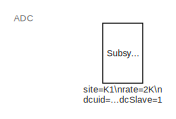
[diagram: root canvas - part 1/3, top left region]
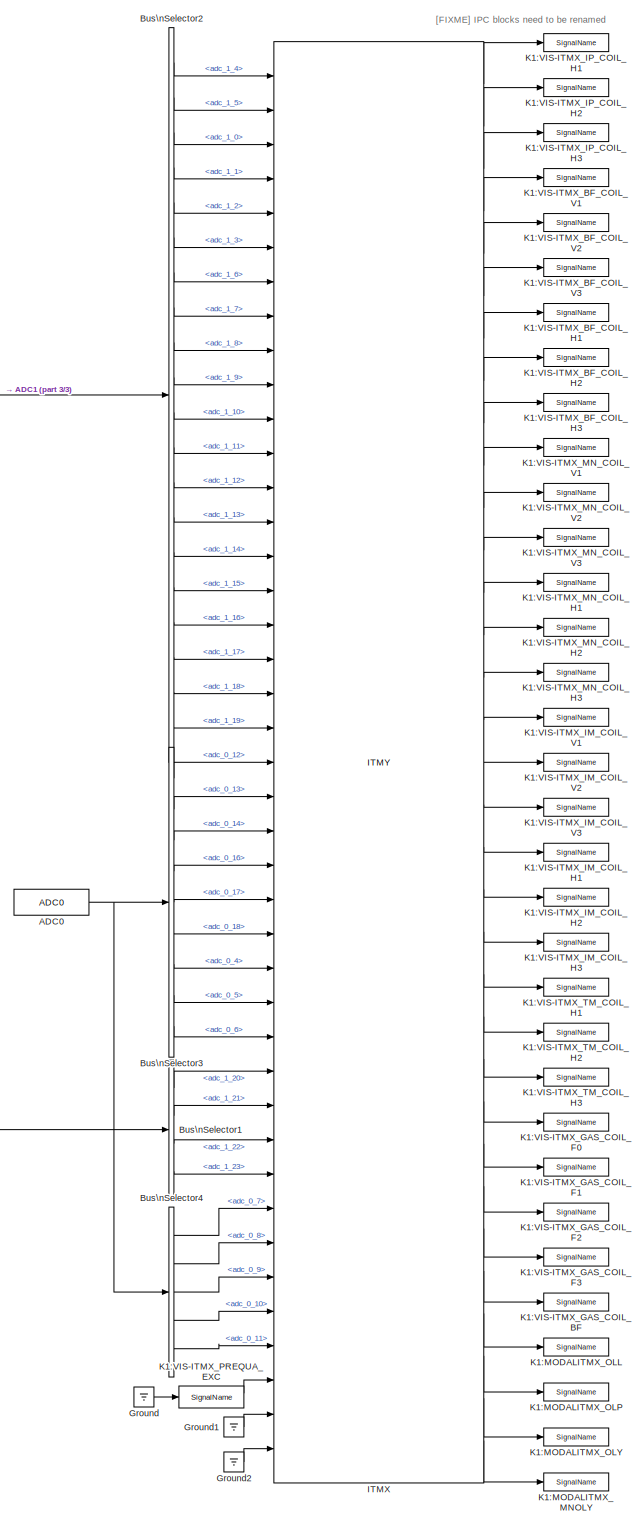
[diagram: root canvas - part 2/3, right side, full height]
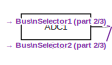
[diagram: root canvas - part 3/3, middle left region]
MODEL k1modalitmx
KIND model
BLOCK [Reference] ADC0  REF=cdsAdcx0/ADC0
  AttributesFormatString = %<Description>\\n%<Tag>
  Description = type-GSC_16AI64SSA\ncard_num=0
  Ports = [0, 1]
  SID = 4476
  SourceBlock = cdsAdcx0/ADC0
  SourceType = SubSystem
  Tag = cdsAdc
BLOCK [Reference] ADC1  REF=cdsAdcx1/ADC1
  AttributesFormatString = %<Description>\\n%<Tag>
  Description = type-GSC_16AI64SSA\ncard_num=1
  Ports = [0, 1]
  SID = 4477
  SourceBlock = cdsAdcx1/ADC1
  SourceType = SubSystem
  Tag = cdsAdc
BLOCK [BusSelector] Bus\nSelector1
  OutputSignals = adc_1_20,adc_1_21,adc_1_22,adc_1_23
  Ports = [1, 4]
  SID = 4478
BLOCK [BusSelector] Bus\nSelector2
  OutputSignals = adc_1_4,adc_1_5,adc_1_0,adc_1_1,adc_1_2,adc_1_3,adc_1_6,adc_1_7,adc_1_8,adc_1_9,adc_1_10,adc_1_11,adc_1_12,adc_1_13,adc_1_14,adc_1_15,adc_1_16,adc_1_17,adc_1_18,adc_1_19
  Ports = [1, 20]
  SID = 4479
BLOCK [BusSelector] Bus\nSelector3
  OutputSignals = adc_0_12,adc_0_13,adc_0_14,adc_0_16,adc_0_17,adc_0_18,adc_0_4,adc_0_5,adc_0_6
  Ports = [1, 9]
  SID = 4480
BLOCK [BusSelector] Bus\nSelector4
  OutputSignals = adc_0_7,adc_0_8,adc_0_9,adc_0_10,adc_0_11
  Ports = [1, 5]
  SID = 4481
BLOCK [Ground] Ground
  SID = 4482
BLOCK [Ground] Ground1
  SID = 6028
BLOCK [Ground] Ground2
  SID = 6029
BLOCK [Reference] ITMX  REF=VISMODAL_MASTER/ITMY
  Ports = [41, 33]
  SID = 6027
  SourceBlock = VISMODAL_MASTER/ITMY
  SourceType = SubSystem
BLOCK [Reference] K1:MODALITMX_MNOLY  REF=cdsIPCx/SignalName
  AttributesFormatString = %<Tag>
  Description = Inter-Process Communication via Shared memory.
  Ports = [1, 2]
  SID = 6033
  SourceBlock = cdsIPCx/SignalName
  SourceType = SubSystem
  Tag = cdsIPCx_SHMEM
BLOCK [Reference] K1:MODALITMX_OLL  REF=cdsIPCx/SignalName
  AttributesFormatString = %<Tag>
  Description = Inter-Process Communication via Shared memory.
  Ports = [1, 2]
  SID = 6030
  SourceBlock = cdsIPCx/SignalName
  SourceType = SubSystem
  Tag = cdsIPCx_SHMEM
BLOCK [Reference] K1:MODALITMX_OLP  REF=cdsIPCx/SignalName
  AttributesFormatString = %<Tag>
  Description = Inter-Process Communication via Shared memory.
  Ports = [1, 2]
  SID = 6031
  SourceBlock = cdsIPCx/SignalName
  SourceType = SubSystem
  Tag = cdsIPCx_SHMEM
BLOCK [Reference] K1:MODALITMX_OLY  REF=cdsIPCx/SignalName
  AttributesFormatString = %<Tag>
  Description = Inter-Process Communication via Shared memory.
  Ports = [1, 2]
  SID = 6032
  SourceBlock = cdsIPCx/SignalName
  SourceType = SubSystem
  Tag = cdsIPCx_SHMEM
BLOCK [Reference] K1:VIS-ITMX_BF_COIL_H1  REF=cdsIPCx/SignalName
  AttributesFormatString = %<Tag>
  Description = Inter-Process Communication via Shared memory.
  Ports = [1, 2]
  SID = 5995
  SourceBlock = cdsIPCx/SignalName
  SourceType = SubSystem
  Tag = cdsIPCx_SHMEM
BLOCK [Reference] K1:VIS-ITMX_BF_COIL_H2  REF=cdsIPCx/SignalName
  AttributesFormatString = %<Tag>
  Description = Inter-Process Communication via Shared memory.
  Ports = [1, 2]
  SID = 5996
  SourceBlock = cdsIPCx/SignalName
  SourceType = SubSystem
  Tag = cdsIPCx_SHMEM
BLOCK [Reference] K1:VIS-ITMX_BF_COIL_H3  REF=cdsIPCx/SignalName
  AttributesFormatString = %<Tag>
  Description = Inter-Process Communication via Shared memory.
  Ports = [1, 2]
  SID = 5997
  SourceBlock = cdsIPCx/SignalName
  SourceType = SubSystem
  Tag = cdsIPCx_SHMEM
BLOCK [Reference] K1:VIS-ITMX_BF_COIL_V1  REF=cdsIPCx/SignalName
  AttributesFormatString = %<Tag>
  Description = Inter-Process Communication via Shared memory.
  Ports = [1, 2]
  SID = 5998
  SourceBlock = cdsIPCx/SignalName
  SourceType = SubSystem
  Tag = cdsIPCx_SHMEM
BLOCK [Reference] K1:VIS-ITMX_BF_COIL_V2  REF=cdsIPCx/SignalName
  AttributesFormatString = %<Tag>
  Description = Inter-Process Communication via Shared memory.
  Ports = [1, 2]
  SID = 5999
  SourceBlock = cdsIPCx/SignalName
  SourceType = SubSystem
  Tag = cdsIPCx_SHMEM
BLOCK [Reference] K1:VIS-ITMX_BF_COIL_V3  REF=cdsIPCx/SignalName
  AttributesFormatString = %<Tag>
  Description = Inter-Process Communication via Shared memory.
  Ports = [1, 2]
  SID = 6000
  SourceBlock = cdsIPCx/SignalName
  SourceType = SubSystem
  Tag = cdsIPCx_SHMEM
BLOCK [Reference] K1:VIS-ITMX_GAS_COIL_BF  REF=cdsIPCx/SignalName
  AttributesFormatString = %<Tag>
  Description = Inter-Process Communication via Shared memory.
  Ports = [1, 2]
  SID = 6001
  SourceBlock = cdsIPCx/SignalName
  SourceType = SubSystem
  Tag = cdsIPCx_SHMEM
BLOCK [Reference] K1:VIS-ITMX_GAS_COIL_F0  REF=cdsIPCx/SignalName
  AttributesFormatString = %<Tag>
  Description = Inter-Process Communication via Shared memory.
  Ports = [1, 2]
  SID = 6002
  SourceBlock = cdsIPCx/SignalName
  SourceType = SubSystem
  Tag = cdsIPCx_SHMEM
BLOCK [Reference] K1:VIS-ITMX_GAS_COIL_F1  REF=cdsIPCx/SignalName
  AttributesFormatString = %<Tag>
  Description = Inter-Process Communication via Shared memory.
  Ports = [1, 2]
  SID = 6003
  SourceBlock = cdsIPCx/SignalName
  SourceType = SubSystem
  Tag = cdsIPCx_SHMEM
BLOCK [Reference] K1:VIS-ITMX_GAS_COIL_F2  REF=cdsIPCx/SignalName
  AttributesFormatString = %<Tag>
  Description = Inter-Process Communication via Shared memory.
  Ports = [1, 2]
  SID = 6004
  SourceBlock = cdsIPCx/SignalName
  SourceType = SubSystem
  Tag = cdsIPCx_SHMEM
BLOCK [Reference] K1:VIS-ITMX_GAS_COIL_F3  REF=cdsIPCx/SignalName
  AttributesFormatString = %<Tag>
  Description = Inter-Process Communication via Shared memory.
  Ports = [1, 2]
  SID = 6005
  SourceBlock = cdsIPCx/SignalName
  SourceType = SubSystem
  Tag = cdsIPCx_SHMEM
BLOCK [Reference] K1:VIS-ITMX_IM_COIL_H1  REF=cdsIPCx/SignalName
  AttributesFormatString = %<Tag>
  Description = Inter-Process Communication via Shared memory.
  Ports = [1, 2]
  SID = 6006
  SourceBlock = cdsIPCx/SignalName
  SourceType = SubSystem
  Tag = cdsIPCx_SHMEM
BLOCK [Reference] K1:VIS-ITMX_IM_COIL_H2  REF=cdsIPCx/SignalName
  AttributesFormatString = %<Tag>
  Description = Inter-Process Communication via Shared memory.
  Ports = [1, 2]
  SID = 6007
  SourceBlock = cdsIPCx/SignalName
  SourceType = SubSystem
  Tag = cdsIPCx_SHMEM
BLOCK [Reference] K1:VIS-ITMX_IM_COIL_H3  REF=cdsIPCx/SignalName
  AttributesFormatString = %<Tag>
  Description = Inter-Process Communication via Shared memory.
  Ports = [1, 2]
  SID = 6008
  SourceBlock = cdsIPCx/SignalName
  SourceType = SubSystem
  Tag = cdsIPCx_SHMEM
BLOCK [Reference] K1:VIS-ITMX_IM_COIL_V1  REF=cdsIPCx/SignalName
  AttributesFormatString = %<Tag>
  Description = Inter-Process Communication via Shared memory.
  Ports = [1, 2]
  SID = 6009
  SourceBlock = cdsIPCx/SignalName
  SourceType = SubSystem
  Tag = cdsIPCx_SHMEM
BLOCK [Reference] K1:VIS-ITMX_IM_COIL_V2  REF=cdsIPCx/SignalName
  AttributesFormatString = %<Tag>
  Description = Inter-Process Communication via Shared memory.
  Ports = [1, 2]
  SID = 6010
  SourceBlock = cdsIPCx/SignalName
  SourceType = SubSystem
  Tag = cdsIPCx_SHMEM
BLOCK [Reference] K1:VIS-ITMX_IM_COIL_V3  REF=cdsIPCx/SignalName
  AttributesFormatString = %<Tag>
  Description = Inter-Process Communication via Shared memory.
  Ports = [1, 2]
  SID = 6011
  SourceBlock = cdsIPCx/SignalName
  SourceType = SubSystem
  Tag = cdsIPCx_SHMEM
BLOCK [Reference] K1:VIS-ITMX_IP_COIL_H1  REF=cdsIPCx/SignalName
  AttributesFormatString = %<Tag>
  Description = Inter-Process Communication via Shared memory.
  Ports = [1, 2]
  SID = 6012
  SourceBlock = cdsIPCx/SignalName
  SourceType = SubSystem
  Tag = cdsIPCx_SHMEM
BLOCK [Reference] K1:VIS-ITMX_IP_COIL_H2  REF=cdsIPCx/SignalName
  AttributesFormatString = %<Tag>
  Description = Inter-Process Communication via Shared memory.
  Ports = [1, 2]
  SID = 6013
  SourceBlock = cdsIPCx/SignalName
  SourceType = SubSystem
  Tag = cdsIPCx_SHMEM
BLOCK [Reference] K1:VIS-ITMX_IP_COIL_H3  REF=cdsIPCx/SignalName
  AttributesFormatString = %<Tag>
  Description = Inter-Process Communication via Shared memory.
  Ports = [1, 2]
  SID = 6014
  SourceBlock = cdsIPCx/SignalName
  SourceType = SubSystem
  Tag = cdsIPCx_SHMEM
BLOCK [Reference] K1:VIS-ITMX_MN_COIL_H1  REF=cdsIPCx/SignalName
  AttributesFormatString = %<Tag>
  Description = Inter-Process Communication via Shared memory.
  Ports = [1, 2]
  SID = 6015
  SourceBlock = cdsIPCx/SignalName
  SourceType = SubSystem
  Tag = cdsIPCx_SHMEM
BLOCK [Reference] K1:VIS-ITMX_MN_COIL_H2  REF=cdsIPCx/SignalName
  AttributesFormatString = %<Tag>
  Description = Inter-Process Communication via Shared memory.
  Ports = [1, 2]
  SID = 6016
  SourceBlock = cdsIPCx/SignalName
  SourceType = SubSystem
  Tag = cdsIPCx_SHMEM
BLOCK [Reference] K1:VIS-ITMX_MN_COIL_H3  REF=cdsIPCx/SignalName
  AttributesFormatString = %<Tag>
  Description = Inter-Process Communication via Shared memory.
  Ports = [1, 2]
  SID = 6017
  SourceBlock = cdsIPCx/SignalName
  SourceType = SubSystem
  Tag = cdsIPCx_SHMEM
BLOCK [Reference] K1:VIS-ITMX_MN_COIL_V1  REF=cdsIPCx/SignalName
  AttributesFormatString = %<Tag>
  Description = Inter-Process Communication via Shared memory.
  Ports = [1, 2]
  SID = 6018
  SourceBlock = cdsIPCx/SignalName
  SourceType = SubSystem
  Tag = cdsIPCx_SHMEM
BLOCK [Reference] K1:VIS-ITMX_MN_COIL_V2  REF=cdsIPCx/SignalName
  AttributesFormatString = %<Tag>
  Description = Inter-Process Communication via Shared memory.
  Ports = [1, 2]
  SID = 6019
  SourceBlock = cdsIPCx/SignalName
  SourceType = SubSystem
  Tag = cdsIPCx_SHMEM
BLOCK [Reference] K1:VIS-ITMX_MN_COIL_V3  REF=cdsIPCx/SignalName
  AttributesFormatString = %<Tag>
  Description = Inter-Process Communication via Shared memory.
  Ports = [1, 2]
  SID = 6020
  SourceBlock = cdsIPCx/SignalName
  SourceType = SubSystem
  Tag = cdsIPCx_SHMEM
BLOCK [Reference] K1:VIS-ITMX_PREQUA_EXC  REF=cdsIPCx/SignalName
  AttributesFormatString = %<Tag>
  Description = Inter-Process Communication via Shared memory.
  Ports = [1, 2]
  SID = 6021
  SourceBlock = cdsIPCx/SignalName
  SourceType = SubSystem
  Tag = cdsIPCx_SHMEM
BLOCK [Reference] K1:VIS-ITMX_TM_COIL_H1  REF=cdsIPCx/SignalName
  AttributesFormatString = %<Tag>
  Description = Inter-Process Communication via Shared memory.
  Ports = [1, 2]
  SID = 6022
  SourceBlock = cdsIPCx/SignalName
  SourceType = SubSystem
  Tag = cdsIPCx_SHMEM
BLOCK [Reference] K1:VIS-ITMX_TM_COIL_H2  REF=cdsIPCx/SignalName
  AttributesFormatString = %<Tag>
  Description = Inter-Process Communication via Shared memory.
  Ports = [1, 2]
  SID = 6023
  SourceBlock = cdsIPCx/SignalName
  SourceType = SubSystem
  Tag = cdsIPCx_SHMEM
BLOCK [Reference] K1:VIS-ITMX_TM_COIL_H3  REF=cdsIPCx/SignalName
  AttributesFormatString = %<Tag>
  Description = Inter-Process Communication via Shared memory.
  Ports = [1, 2]
  SID = 6024
  SourceBlock = cdsIPCx/SignalName
  SourceType = SubSystem
  Tag = cdsIPCx_SHMEM
BLOCK [Reference] site=K1\nrate=2K\ndcuid=95\nhost=k1ix1\nspecific_cpu=5\nadcSlave=1  REF=cdsParameters/Subsystem
  AttributesFormatString = %<Tag>
  Description = Purpose:                                                                                                                                                                                                                                \nProvide system parameters to the FE code generator to properly configure the generated EPICS names, rep rate of the FE controller, and the Data Acquisition node ID fo...<+2934ch>
  Ports = []
  SID = 3
  SourceBlock = cdsParameters/Subsystem
  SourceType = SubSystem
  Tag = cdsParameters
ANNOTATION (root): \n \n ADC
ANNOTATION (root): \n \n [FIXME] IPC blocks need to be renamed
NET ADC0:1 -> Bus\nSelector3:1, Bus\nSelector4:1
NET ADC1:1 -> Bus\nSelector1:1, Bus\nSelector2:1
LINE Bus\nSelector1:1 -> ITMX:30
LINE Bus\nSelector1:2 -> ITMX:31
LINE Bus\nSelector1:3 -> ITMX:32
LINE Bus\nSelector1:4 -> ITMX:33
LINE Bus\nSelector2:1 -> ITMX:1
LINE Bus\nSelector2:10 -> ITMX:10
LINE Bus\nSelector2:11 -> ITMX:11
LINE Bus\nSelector2:12 -> ITMX:12
LINE Bus\nSelector2:13 -> ITMX:13
LINE Bus\nSelector2:14 -> ITMX:14
LINE Bus\nSelector2:15 -> ITMX:15
LINE Bus\nSelector2:16 -> ITMX:16
LINE Bus\nSelector2:17 -> ITMX:17
LINE Bus\nSelector2:18 -> ITMX:18
LINE Bus\nSelector2:19 -> ITMX:19
LINE Bus\nSelector2:2 -> ITMX:2
LINE Bus\nSelector2:20 -> ITMX:20
LINE Bus\nSelector2:3 -> ITMX:3
LINE Bus\nSelector2:4 -> ITMX:4
LINE Bus\nSelector2:5 -> ITMX:5
LINE Bus\nSelector2:6 -> ITMX:6
LINE Bus\nSelector2:7 -> ITMX:7
LINE Bus\nSelector2:8 -> ITMX:8
LINE Bus\nSelector2:9 -> ITMX:9
LINE Bus\nSelector3:1 -> ITMX:21
LINE Bus\nSelector3:2 -> ITMX:22
LINE Bus\nSelector3:3 -> ITMX:23
LINE Bus\nSelector3:4 -> ITMX:24
LINE Bus\nSelector3:5 -> ITMX:25
LINE Bus\nSelector3:6 -> ITMX:26
LINE Bus\nSelector3:7 -> ITMX:27
LINE Bus\nSelector3:8 -> ITMX:28
LINE Bus\nSelector3:9 -> ITMX:29
LINE Bus\nSelector4:1 -> ITMX:34
LINE Bus\nSelector4:2 -> ITMX:35
LINE Bus\nSelector4:3 -> ITMX:36
LINE Bus\nSelector4:4 -> ITMX:37
LINE Bus\nSelector4:5 -> ITMX:38
LINE Ground1:1 -> ITMX:40
LINE Ground2:1 -> ITMX:41
LINE Ground:1 -> K1:VIS-ITMX_PREQUA_EXC:1
LINE ITMX:1 -> K1:VIS-ITMX_IP_COIL_H1:1
LINE ITMX:10 -> K1:VIS-ITMX_MN_COIL_V1:1
LINE ITMX:11 -> K1:VIS-ITMX_MN_COIL_V2:1
LINE ITMX:12 -> K1:VIS-ITMX_MN_COIL_V3:1
LINE ITMX:13 -> K1:VIS-ITMX_MN_COIL_H1:1
LINE ITMX:14 -> K1:VIS-ITMX_MN_COIL_H2:1
LINE ITMX:15 -> K1:VIS-ITMX_MN_COIL_H3:1
LINE ITMX:16 -> K1:VIS-ITMX_IM_COIL_V1:1
LINE ITMX:17 -> K1:VIS-ITMX_IM_COIL_V2:1
LINE ITMX:18 -> K1:VIS-ITMX_IM_COIL_V3:1
LINE ITMX:19 -> K1:VIS-ITMX_IM_COIL_H1:1
LINE ITMX:2 -> K1:VIS-ITMX_IP_COIL_H2:1
LINE ITMX:20 -> K1:VIS-ITMX_IM_COIL_H2:1
LINE ITMX:21 -> K1:VIS-ITMX_IM_COIL_H3:1
LINE ITMX:22 -> K1:VIS-ITMX_TM_COIL_H1:1
LINE ITMX:23 -> K1:VIS-ITMX_TM_COIL_H2:1
LINE ITMX:24 -> K1:VIS-ITMX_TM_COIL_H3:1
LINE ITMX:25 -> K1:VIS-ITMX_GAS_COIL_F0:1
LINE ITMX:26 -> K1:VIS-ITMX_GAS_COIL_F1:1
LINE ITMX:27 -> K1:VIS-ITMX_GAS_COIL_F2:1
LINE ITMX:28 -> K1:VIS-ITMX_GAS_COIL_F3:1
LINE ITMX:29 -> K1:VIS-ITMX_GAS_COIL_BF:1
LINE ITMX:3 -> K1:VIS-ITMX_IP_COIL_H3:1
LINE ITMX:30 -> K1:MODALITMX_OLL:1
LINE ITMX:31 -> K1:MODALITMX_OLP:1
LINE ITMX:32 -> K1:MODALITMX_OLY:1
LINE ITMX:33 -> K1:MODALITMX_MNOLY:1
LINE ITMX:4 -> K1:VIS-ITMX_BF_COIL_V1:1
LINE ITMX:5 -> K1:VIS-ITMX_BF_COIL_V2:1
LINE ITMX:6 -> K1:VIS-ITMX_BF_COIL_V3:1
LINE ITMX:7 -> K1:VIS-ITMX_BF_COIL_H1:1
LINE ITMX:8 -> K1:VIS-ITMX_BF_COIL_H2:1
LINE ITMX:9 -> K1:VIS-ITMX_BF_COIL_H3:1
LINE K1:VIS-ITMX_PREQUA_EXC:1 -> ITMX:39
note: NET lines group one-source signal fan-out (src -> all destinations, sorted); 1:1 wires keep LINE
